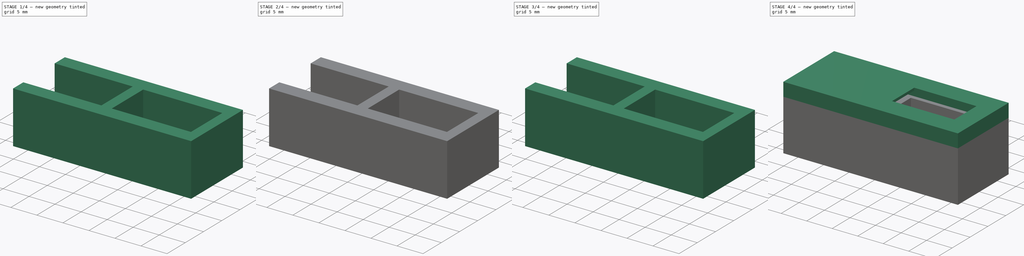
[diagram: build sequence overview — one tinted view per stage of 4, left to right]
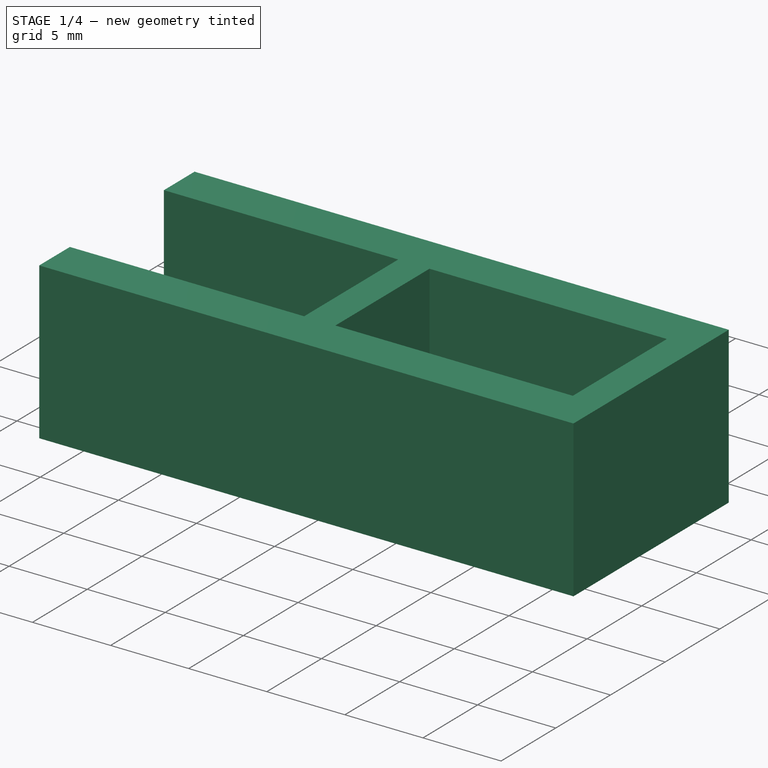
[diagram: stage 1 of 4 — iso view after this stage's code; geometry added in this stage tinted green]
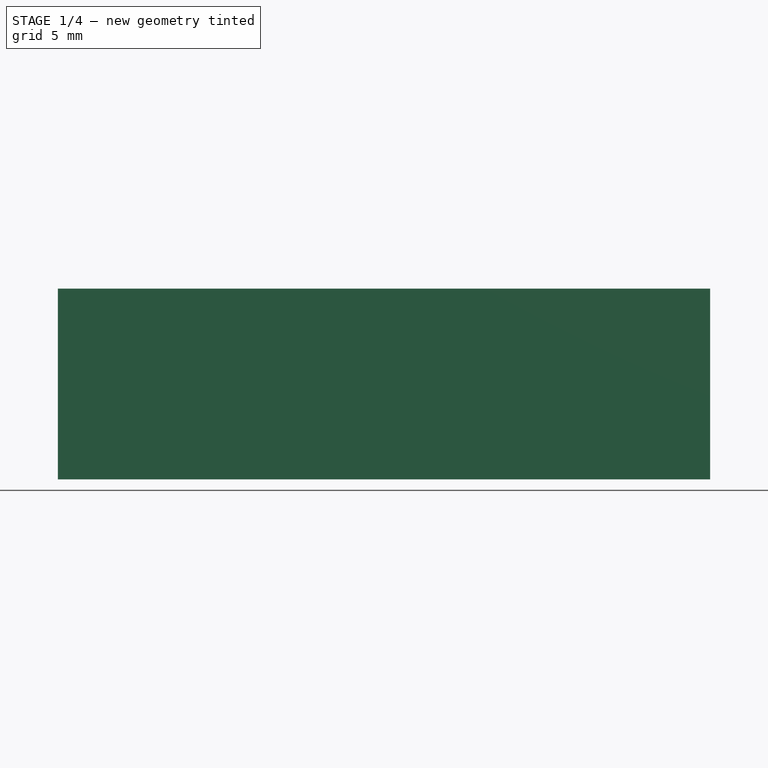
[diagram: stage 1 of 4 — front view after this stage's code; geometry added in this stage tinted green]
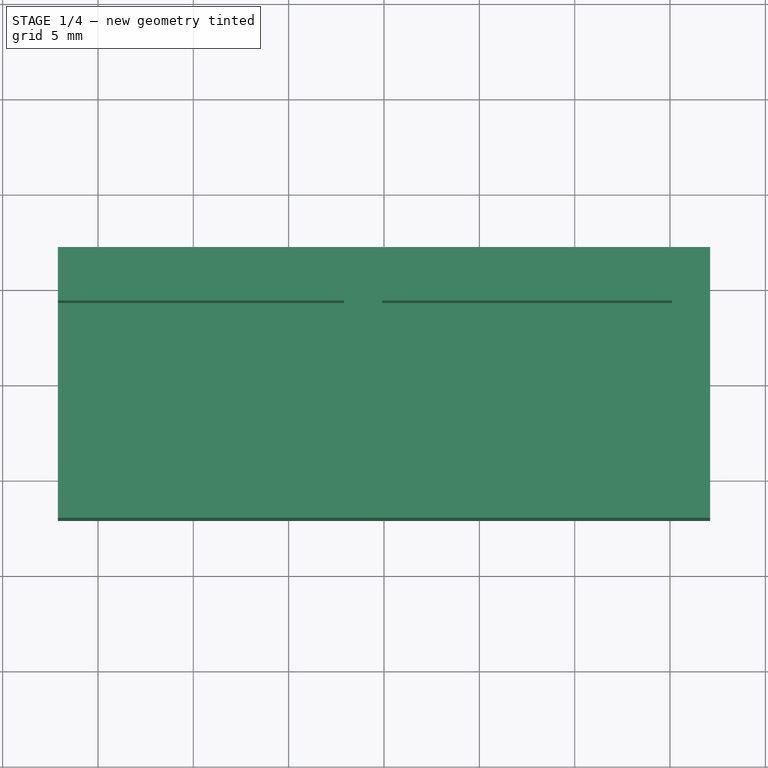
[diagram: stage 1 of 4 — top view after this stage's code; geometry added in this stage tinted green]
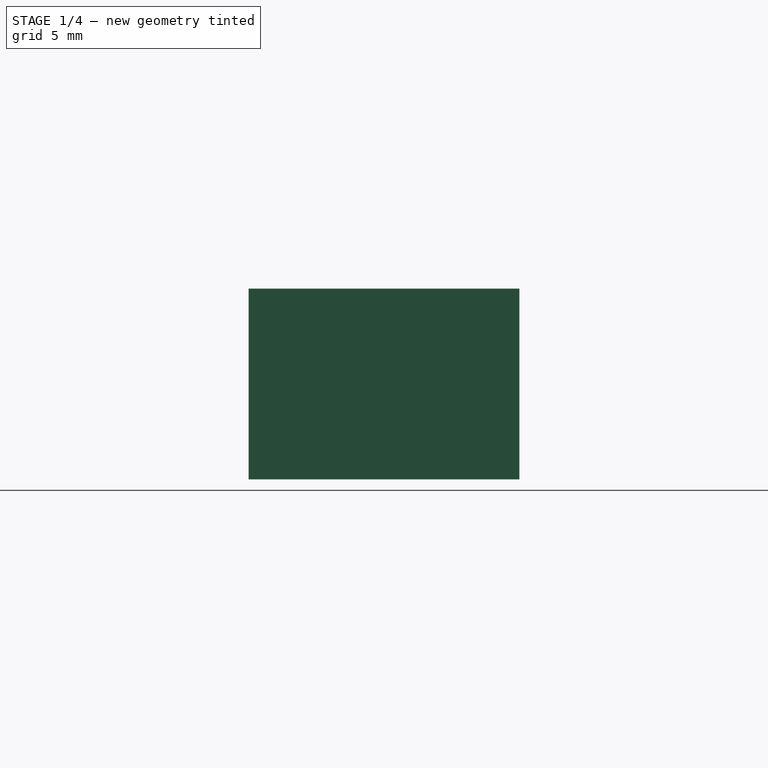
[diagram: stage 1 of 4 — right view after this stage's code; geometry added in this stage tinted green]
FCSTD DOCUMENT  (FreeCAD 0.20R29410 (Git))
Label: Sensor
License: All rights reserved
LicenseURL: http://en.wikipedia.org/wiki/All_rights_reserved
objects: Part::Extrusion×8, Sketcher::SketchObject×6, Part::MultiFuse×4, PartDesign::Body×1, Part::Cut×1
note: 20 computed .brp shape members not serialized (recipe doc carries the construction recipe); baked Part::Feature solids carry a one-line shape summary decoded from their .brp

FEATURE [Sketcher::SketchObject] Sketch  label="bottom_plate_sketch"
  FullyConstrained = true
  MapMode = 5
  Support = -> [XY_Plane]
  sketch-geometry (4):
    g0: LineSegment StartX=-17.1 StartY=7.1 StartZ=0 EndX=17.1 EndY=7.1 EndZ=0
    g1: LineSegment StartX=17.1 StartY=7.1 StartZ=0 EndX=17.1 EndY=-7.1 EndZ=0
    g2: LineSegment StartX=17.1 StartY=-7.1 StartZ=0 EndX=-17.1 EndY=-7.1 EndZ=0
    g3: LineSegment StartX=-17.1 StartY=-7.1 StartZ=0 EndX=-17.1 EndY=7.1 EndZ=0
  constraints (12):
    c: Coincident(g0,g1)
    c: Coincident(g1,g2)
    c: Coincident(g2,g3)
    c: Coincident(g3,g0)
    c: Horizontal(g0)
    c: Horizontal(g2)
    c: Vertical(g1)
    c: Vertical(g3)
    c: Distance(g1) = 14.2
    c: DistanceY(g-1,g0) = 7.1
    c: Distance(g0) = 34.2
    c: DistanceX(g-2,g0) = -17.1
FEATURE [Sketcher::SketchObject] Sketch001  label="bottom_around_bottom_sketch"
  FullyConstrained = true
  MapMode = 5
  Support = -> [XY_Plane]
  sketch-geometry (12):
    g0: LineSegment StartX=-17.1 StartY=7.1 StartZ=0 EndX=17.1 EndY=7.1 EndZ=0
    g1: LineSegment StartX=17.1 StartY=7.1 StartZ=0 EndX=17.1 EndY=-7.1 EndZ=0
    g2: LineSegment StartX=17.1 StartY=-7.1 StartZ=0 EndX=-17.1 EndY=-7.1 EndZ=0
    g3: LineSegment StartX=-17.1 StartY=-7.1 StartZ=0 EndX=-17.1 EndY=-4.3 EndZ=0
    g4: LineSegment StartX=-17.1 StartY=4.3 StartZ=0 EndX=-17.1 EndY=7.1 EndZ=0
    g5: LineSegment StartX=15.1 StartY=-4.3 StartZ=0 EndX=15.1 EndY=4.3 EndZ=0
    g6: LineSegment StartX=-17.1 StartY=4.3 StartZ=0 EndX=-2.1 EndY=4.3 EndZ=0
    g7: LineSegment StartX=-0.1 StartY=4.3 StartZ=0 EndX=15.1 EndY=4.3 EndZ=0
    g8: LineSegment StartX=-17.1 StartY=-4.3 StartZ=0 EndX=-2.1 EndY=-4.3 EndZ=0
    g9: LineSegment StartX=-0.1 StartY=-4.3 StartZ=0 EndX=15.1 EndY=-4.3 EndZ=0
    g10: LineSegment StartX=-2.1 StartY=4.3 StartZ=0 EndX=-2.1 EndY=-4.3 EndZ=0
    g11: LineSegment StartX=-0.1 StartY=-4.3 StartZ=0 EndX=-0.1 EndY=4.3 EndZ=0
  constraints (36):
    c: Coincident(g0,g1)
    c: Coincident(g1,g2)
    c: Coincident(g2,g3)
    c: Coincident(g4,g0)
    c: Horizontal(g0)
    c: Horizontal(g2)
    c: Vertical(g1)
    c: Distance(g1) = 14.2
    c: DistanceY(g-1,g0) = 7.1
    c: Distance(g0) = 34.2
    c: DistanceX(g-2,g0) = -17.1
    c: Vertical(g3)
    c: Vertical(g4)
    c: Distance(g4) = 2.8
    c: Distance(g3) = 2.8
    c: Vertical(g2,g4)
    c: Coincident(g6,g4)
    c: Coincident(g8,g3)
    c: Vertical(g7,g9)
    c: Distance(g9,g1) = 2
    c: Coincident(g5,g9)
    c: Coincident(g5,g7)
    c: Horizontal(g6)
    c: Horizontal(g7)
    c: Horizontal(g8)
    c: Horizontal(g9)
    c: Vertical(g8,g6)
    c: Horizontal(g6,g7)
    c: Horizontal(g8,g9)
    c: Vertical(g7,g9)
    c: Coincident(g10,g6)
    c: Coincident(g10,g8)
    c: Coincident(g11,g9)
    c: Coincident(g11,g7)
    c: Distance(g6) = 15
    c: Distance(g7,g6) = 2
FEATURE [Part::Extrusion] Extrude  label="bottom_plate"
  Base = -> Sketch
  Dir = (0,0,1)
  DirMode = 2
  FaceMakerClass = Part::FaceMakerBullseye
  LengthFwd = 2
  LengthRev = 0
  Solid = true
  Symmetric = false
FEATURE [Part::Extrusion] Extrude001  label="bottom_around_bottom"
  Base = -> Sketch001
  Dir = (0,0,1)
  DirMode = 2
  FaceMakerClass = Part::FaceMakerBullseye
  LengthFwd = 10
  LengthRev = -2
  Solid = true
  Symmetric = false
FEATURE [Part::MultiFuse] Fusion003  label="bottom_half"
  Shapes = -> [Extrude,Extrude001]
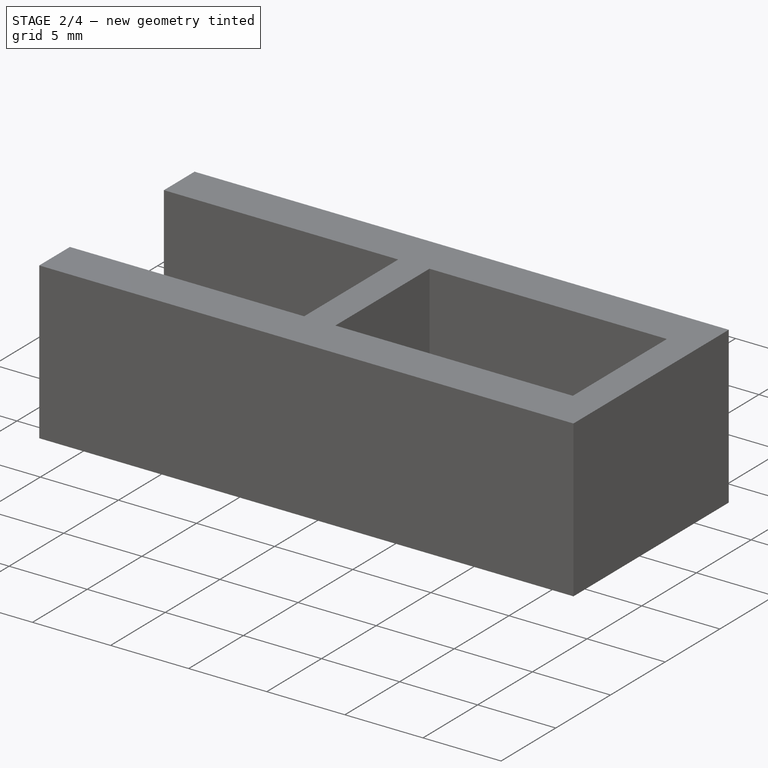
[diagram: stage 2 of 4 — iso view after this stage's code; geometry added in this stage tinted green]
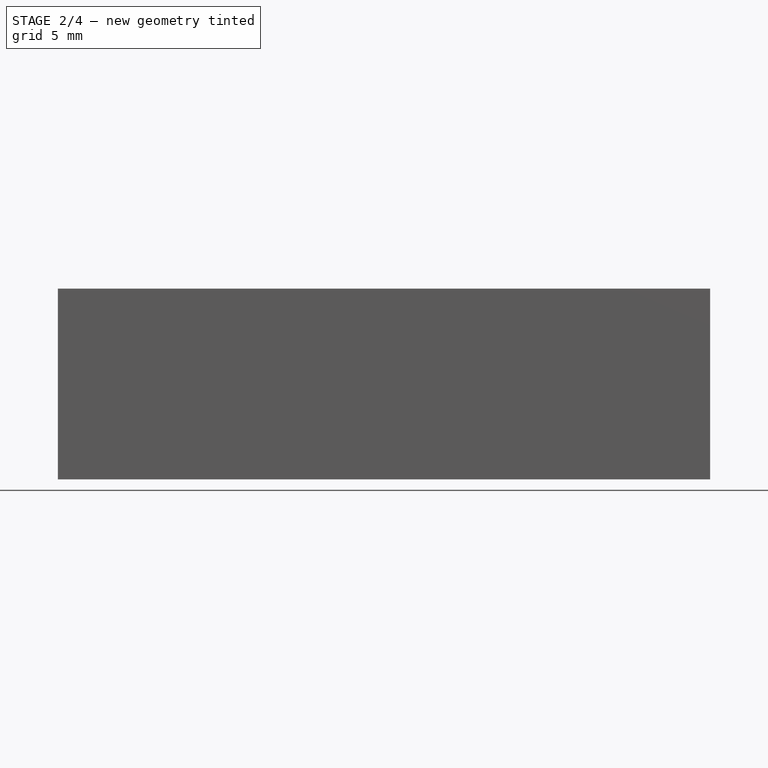
[diagram: stage 2 of 4 — front view after this stage's code; geometry added in this stage tinted green]
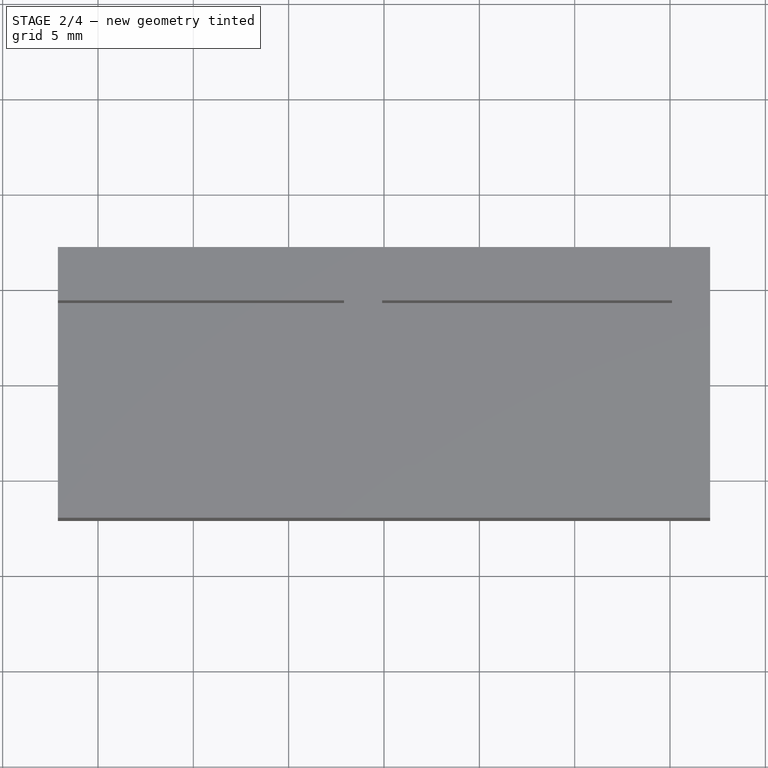
[diagram: stage 2 of 4 — top view after this stage's code; geometry added in this stage tinted green]
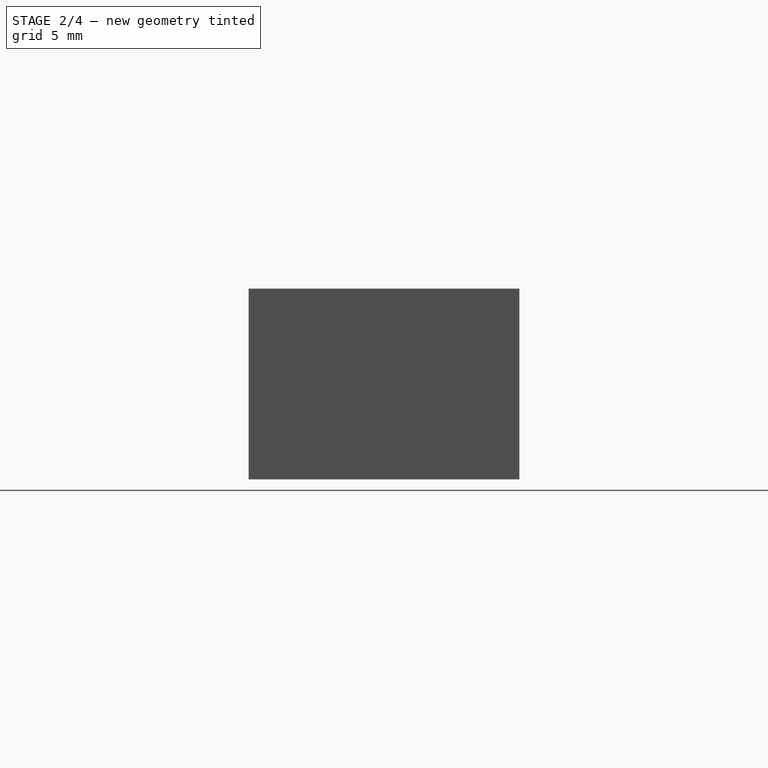
[diagram: stage 2 of 4 — right view after this stage's code; geometry added in this stage tinted green]
FEATURE [Sketcher::SketchObject] Sketch005  label="hook_sketch001"
  FullyConstrained = true
  MapMode = 5
  Placement = pos=(0,0,0) rot=(0.57735,0.57735,0.57735;2.0944rad)
  sketch-geometry (12):
    g0: LineSegment StartX=-7.1 StartY=10 StartZ=0 EndX=-6.6 EndY=10 EndZ=0
    g1: LineSegment StartX=-7.1 StartY=7 StartZ=0 EndX=-7.1 EndY=8.5 EndZ=0
    g2: LineSegment StartX=-7.1 StartY=8.5 StartZ=0 EndX=-7.1 EndY=10 EndZ=0
    g3: LineSegment StartX=-6.6 StartY=10 StartZ=0 EndX=-6.6 EndY=8.5 EndZ=0
    g4: LineSegment StartX=-6.6 StartY=8.5 StartZ=0 EndX=-5.6 EndY=8.5 EndZ=0
    g5: LineSegment StartX=-5.6 StartY=8.5 StartZ=0 EndX=-7.1 EndY=7 EndZ=0
    g6: LineSegment StartX=6.6 StartY=10 StartZ=0 EndX=7.1 EndY=10 EndZ=0
    g7: LineSegment StartX=6.6 StartY=8.5 StartZ=0 EndX=6.6 EndY=10 EndZ=0
    g8: LineSegment StartX=7.1 StartY=10 StartZ=0 EndX=7.1 EndY=8.5 EndZ=0
    g9: LineSegment StartX=7.1 StartY=8.5 StartZ=0 EndX=7.1 EndY=7 EndZ=0
    g10: LineSegment StartX=6.6 StartY=8.5 StartZ=0 EndX=5.6 EndY=8.5 EndZ=0
    g11: LineSegment StartX=5.6 StartY=8.5 StartZ=0 EndX=7.1 EndY=7 EndZ=0
  constraints (36):
    c: Coincident(g0,g3)
    c: Coincident(g2,g0)
    c: Horizontal(g0)
    c: DistanceY(g-1,g0) = 10
    c: DistanceX(g-2,g0) = -7.1
    c: Distance(g0) = 0.5
    c: Coincident(g1,g2)
    c: Vertical(g1)
    c: Vertical(g2)
    c: Distance(g1,g2) = 3
    c: Vertical(g3)
    c: Horizontal(g3,g1)
    c: Distance(g1,g1) = 1.5
    c: Coincident(g4,g3)
    c: Horizontal(g4)
    c: Coincident(g5,g4)
    c: Coincident(g5,g1)
    c: Distance(g4) = 1
    c: Coincident(g6,g8)
    c: Coincident(g7,g6)
    c: Horizontal(g6)
    c: DistanceX(g-2,g6) = 7.1
    c: DistanceY(g-1,g6) = 10
    c: Distance(g6) = 0.5
    c: Vertical(g7)
    c: Coincident(g8,g9)
    c: Vertical(g8)
    c: Vertical(g9)
    c: Distance(g8,g9) = 3
    c: Horizontal(g7,g8)
    c: Distance(g9) = 1.5
    c: Coincident(g10,g7)
    c: Horizontal(g10)
    c: Distance(g10) = 1
    c: Coincident(g11,g10)
    c: Coincident(g11,g9)
FEATURE [Part::Extrusion] Extrude007  label="hook003"
  Base = -> Sketch005
  Dir = (1,-1e-16,1e-16)
  DirMode = 2
  FaceMakerClass = Part::FaceMakerBullseye
  LengthFwd = 11
  LengthRev = -6
  Solid = true
  Symmetric = false
FEATURE [Part::Extrusion] Extrude008  label="hook004"
  Base = -> Sketch005
  Dir = (1,-1e-16,1e-16)
  DirMode = 2
  FaceMakerClass = Part::FaceMakerBullseye
  LengthFwd = -6
  LengthRev = 11
  Solid = true
  Symmetric = false
FEATURE [Part::MultiFuse] Fusion001  label="hook_r"
  Shapes = -> [Extrude007,Extrude008]
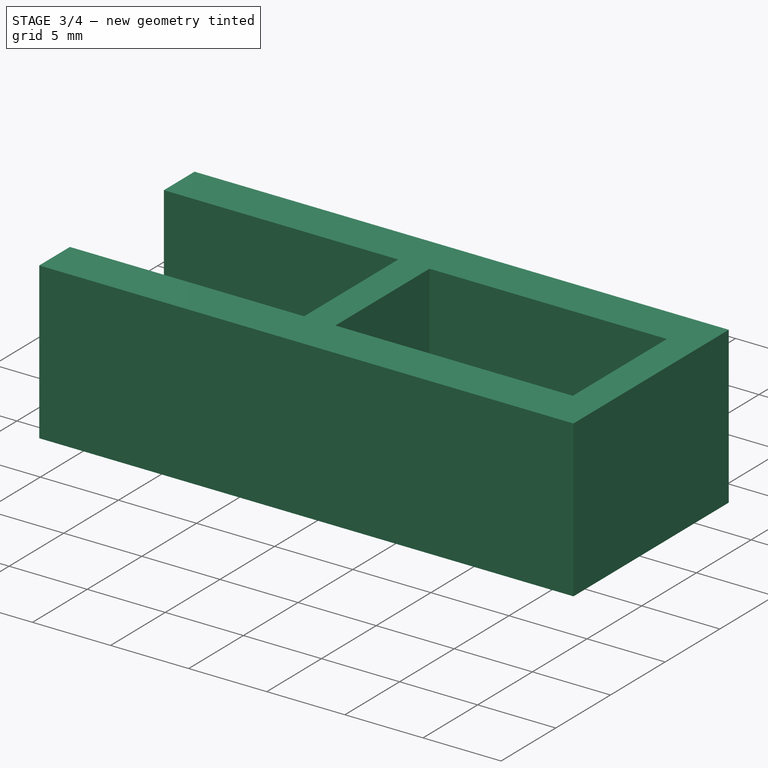
[diagram: stage 3 of 4 — iso view after this stage's code; geometry added in this stage tinted green]
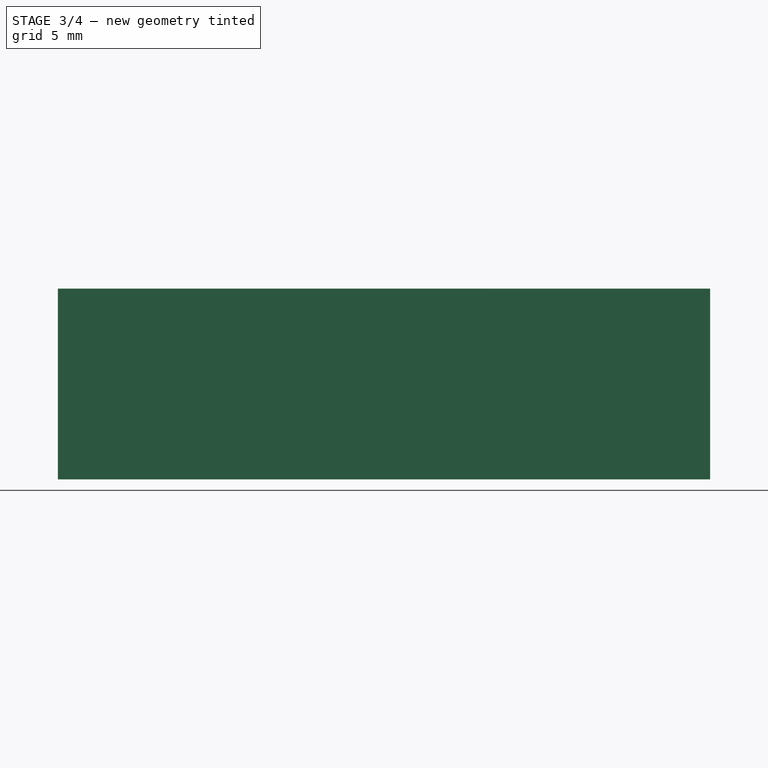
[diagram: stage 3 of 4 — front view after this stage's code; geometry added in this stage tinted green]
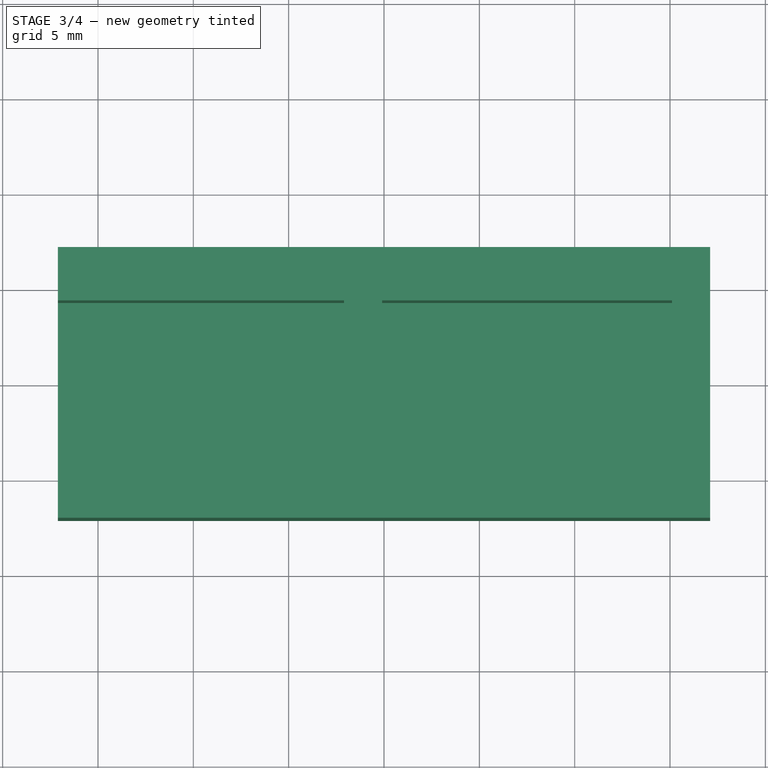
[diagram: stage 3 of 4 — top view after this stage's code; geometry added in this stage tinted green]
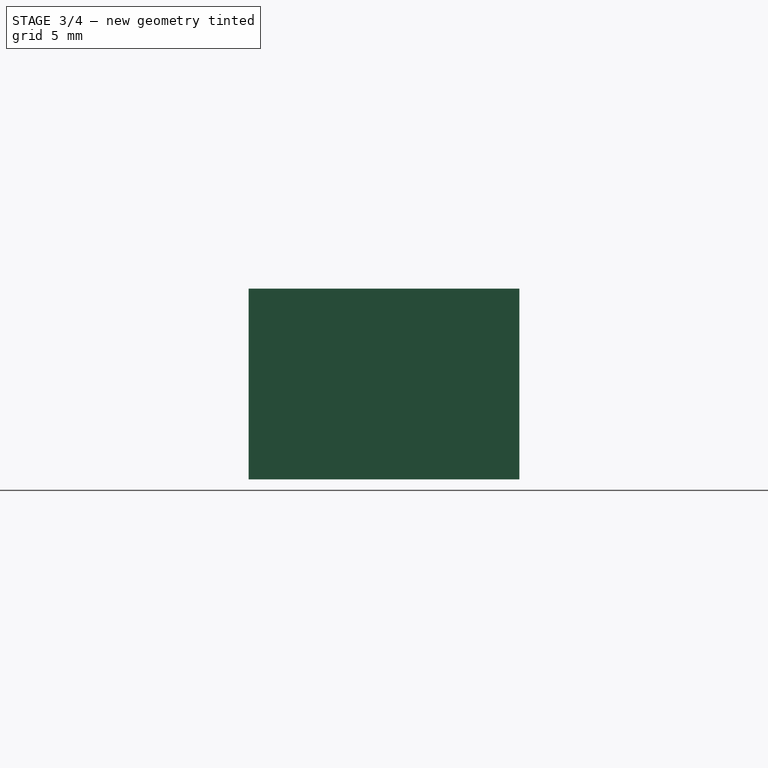
[diagram: stage 3 of 4 — right view after this stage's code; geometry added in this stage tinted green]
FEATURE [Sketcher::SketchObject] Sketch004  label="hook_sketch"
  FullyConstrained = true
  MapMode = 5
  Placement = pos=(0,0,0) rot=(0.57735,0.57735,0.57735;2.0944rad)
  Support = -> [YZ_Plane]
  sketch-geometry (12):
    g0: LineSegment StartX=-7.1 StartY=10 StartZ=0 EndX=-6.6 EndY=10 EndZ=0
    g1: LineSegment StartX=-7.1 StartY=7 StartZ=0 EndX=-7.1 EndY=8.5 EndZ=0
    g2: LineSegment StartX=-7.1 StartY=8.5 StartZ=0 EndX=-7.1 EndY=10 EndZ=0
    g3: LineSegment StartX=-6.6 StartY=10 StartZ=0 EndX=-6.6 EndY=8.5 EndZ=0
    g4: LineSegment StartX=-6.6 StartY=8.5 StartZ=0 EndX=-5.6 EndY=8.5 EndZ=0
    g5: LineSegment StartX=-5.6 StartY=8.5 StartZ=0 EndX=-7.1 EndY=7 EndZ=0
    g6: LineSegment StartX=6.6 StartY=10 StartZ=0 EndX=7.1 EndY=10 EndZ=0
    g7: LineSegment StartX=6.6 StartY=8.5 StartZ=0 EndX=6.6 EndY=10 EndZ=0
    g8: LineSegment StartX=7.1 StartY=10 StartZ=0 EndX=7.1 EndY=8.5 EndZ=0
    g9: LineSegment StartX=7.1 StartY=8.5 StartZ=0 EndX=7.1 EndY=7 EndZ=0
    g10: LineSegment StartX=6.6 StartY=8.5 StartZ=0 EndX=5.6 EndY=8.5 EndZ=0
    g11: LineSegment StartX=5.6 StartY=8.5 StartZ=0 EndX=7.1 EndY=7 EndZ=0
  constraints (36):
    c: Coincident(g0,g3)
    c: Coincident(g2,g0)
    c: Horizontal(g0)
    c: DistanceY(g-1,g0) = 10
    c: DistanceX(g-2,g0) = -7.1
    c: Distance(g0) = 0.5
    c: Coincident(g1,g2)
    c: Vertical(g1)
    c: Vertical(g2)
    c: Distance(g1,g2) = 3
    c: Vertical(g3)
    c: Horizontal(g3,g1)
    c: Distance(g1,g1) = 1.5
    c: Coincident(g4,g3)
    c: Horizontal(g4)
    c: Coincident(g5,g4)
    c: Coincident(g5,g1)
    c: Distance(g4) = 1
    c: Coincident(g6,g8)
    c: Coincident(g7,g6)
    c: Horizontal(g6)
    c: DistanceX(g-2,g6) = 7.1
    c: DistanceY(g-1,g6) = 10
    c: Distance(g6) = 0.5
    c: Vertical(g7)
    c: Coincident(g8,g9)
    c: Vertical(g8)
    c: Vertical(g9)
    c: Distance(g8,g9) = 3
    c: Horizontal(g7,g8)
    c: Distance(g9) = 1.5
    c: Coincident(g10,g7)
    c: Horizontal(g10)
    c: Distance(g10) = 1
    c: Coincident(g11,g10)
    c: Coincident(g11,g9)
FEATURE [PartDesign::Body] Body  label="sketch"
  Group = -> [Sketch,Sketch001,Sketch002,Sketch003,Sketch004]
  Origin = -> Origin
FEATURE [Part::Extrusion] Extrude005  label="hook1"
  Base = -> Sketch004
  Dir = (1,-1e-16,1e-16)
  DirMode = 2
  FaceMakerClass = Part::FaceMakerBullseye
  LengthFwd = 11
  LengthRev = -6
  Solid = true
  Symmetric = false
FEATURE [Part::Extrusion] Extrude006  label="hook2"
  Base = -> Sketch004
  Dir = (1,-1e-16,1e-16)
  DirMode = 2
  FaceMakerClass = Part::FaceMakerBullseye
  LengthFwd = -6
  LengthRev = 11
  Solid = true
  Symmetric = false
FEATURE [Part::MultiFuse] Fusion  label="hook"
  Shapes = -> [Extrude005,Extrude006]
FEATURE [Part::Cut] Cut  label="bottom_part"
  Base = -> Fusion003
  Tool = -> Fusion001
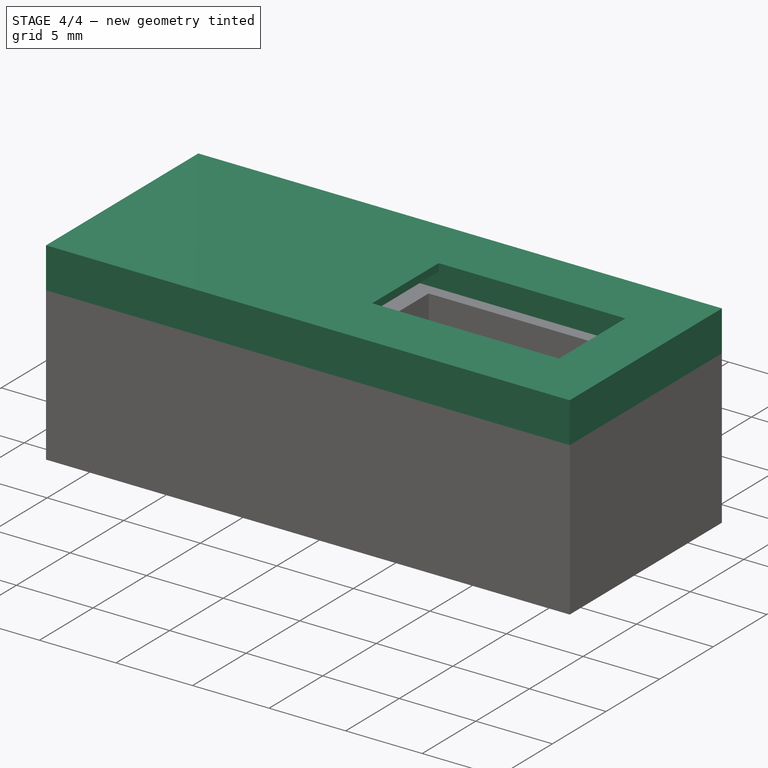
[diagram: stage 4 of 4 — iso view after this stage's code; geometry added in this stage tinted green]
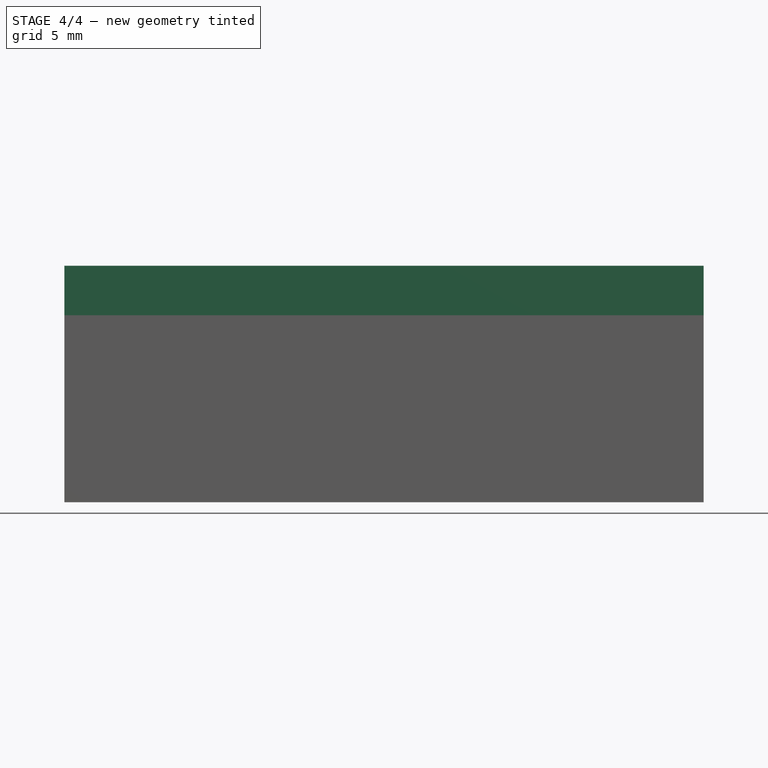
[diagram: stage 4 of 4 — front view after this stage's code; geometry added in this stage tinted green]
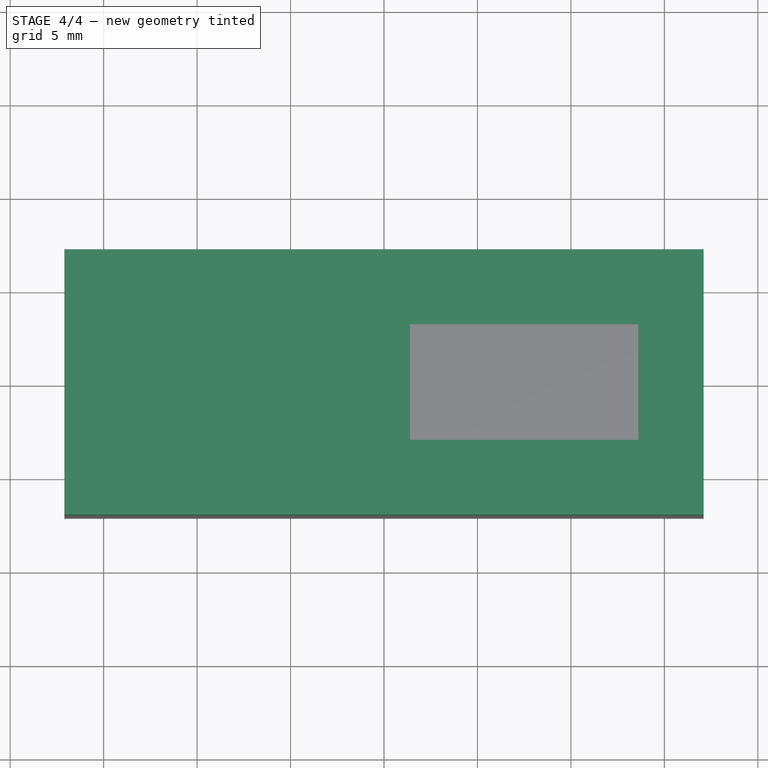
[diagram: stage 4 of 4 — top view after this stage's code; geometry added in this stage tinted green]
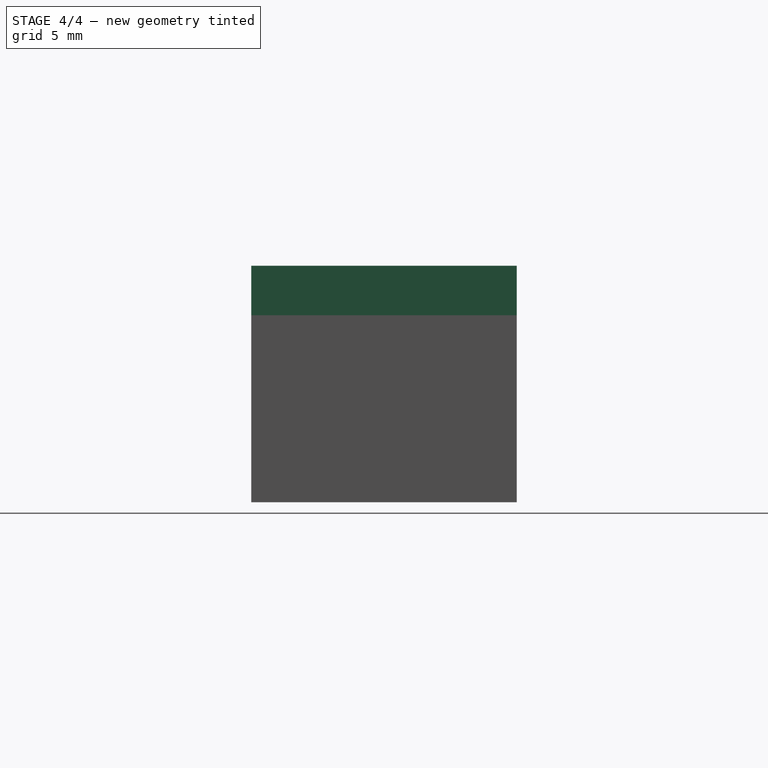
[diagram: stage 4 of 4 — right view after this stage's code; geometry added in this stage tinted green]
FEATURE [Sketcher::SketchObject] Sketch002  label="top_around_sketch"
  FullyConstrained = true
  MapMode = 5
  Support = -> [XY_Plane]
  sketch-geometry (9):
    g0: LineSegment StartX=-17.1 StartY=7.1 StartZ=0 EndX=17.1 EndY=7.1 EndZ=0
    g1: LineSegment StartX=17.1 StartY=7.1 StartZ=0 EndX=17.1 EndY=-7.1 EndZ=0
    g2: LineSegment StartX=17.1 StartY=-7.1 StartZ=0 EndX=-17.1 EndY=-7.1 EndZ=0
    g3: LineSegment StartX=-17.1 StartY=-7.1 StartZ=0 EndX=-17.1 EndY=7.1 EndZ=0
    g4: LineSegment StartX=-15.1 StartY=-5.1 StartZ=0 EndX=-15.1 EndY=5.1 EndZ=0
    g5: LineSegment StartX=-15.1 StartY=5.1 StartZ=0 EndX=15.1 EndY=5.1 EndZ=0
    g6: LineSegment StartX=15.1 StartY=5.1 StartZ=0 EndX=15.1 EndY=-5.1 EndZ=0
    g7: LineSegment StartX=15.1 StartY=-5.1 StartZ=0 EndX=-15.1 EndY=-5.1 EndZ=0
    g8: GeomPoint X=0 Y=0 Z=0
  constraints (24):
    c: Coincident(g0,g1)
    c: Coincident(g1,g2)
    c: Coincident(g2,g3)
    c: Coincident(g3,g0)
    c: Horizontal(g0)
    c: Horizontal(g2)
    c: Vertical(g1)
    c: Vertical(g3)
    c: Distance(g1) = 14.2
    c: DistanceY(g-1,g0) = 7.1
    c: Distance(g0) = 34.2
    c: DistanceX(g-2,g0) = -17.1
    c: Coincident(g4,g5)
    c: Coincident(g5,g6)
    c: Coincident(g6,g7)
    c: Coincident(g7,g4)
    c: Horizontal(g5)
    c: Horizontal(g7)
    c: Vertical(g4)
    c: Vertical(g6)
    c: Symmetric(g5,g4,g8)
    c: Coincident(g8,g-1)
    c: Distance(g4,g0) = 2
    c: Distance(g4,g3) = 2
FEATURE [Part::Extrusion] Extrude003  label="top_around"
  Base = -> Sketch002
  Dir = (0,0,1)
  DirMode = 2
  FaceMakerClass = Part::FaceMakerBullseye
  LengthFwd = 12.65
  LengthRev = -10
  Solid = true
  Symmetric = false
FEATURE [Sketcher::SketchObject] Sketch003  label="top_lid_sketch"
  FullyConstrained = true
  MapMode = 5
  Support = -> [XY_Plane]
  sketch-geometry (9):
    g0: LineSegment StartX=-17.1 StartY=7.1 StartZ=0 EndX=17.1 EndY=7.1 EndZ=0
    g1: LineSegment StartX=17.1 StartY=7.1 StartZ=0 EndX=17.1 EndY=-7.1 EndZ=0
    g2: LineSegment StartX=17.1 StartY=-7.1 StartZ=0 EndX=-17.1 EndY=-7.1 EndZ=0
    g3: LineSegment StartX=-17.1 StartY=-7.1 StartZ=0 EndX=-17.1 EndY=7.1 EndZ=0
    g4: LineSegment StartX=1.4 StartY=-3.1 StartZ=0 EndX=1.4 EndY=3.1 EndZ=0
    g5: LineSegment StartX=1.4 StartY=3.1 StartZ=0 EndX=13.6 EndY=3.1 EndZ=0
    g6: LineSegment StartX=13.6 StartY=3.1 StartZ=0 EndX=13.6 EndY=-3.1 EndZ=0
    g7: LineSegment StartX=13.6 StartY=-3.1 StartZ=0 EndX=1.4 EndY=-3.1 EndZ=0
    g8: GeomPoint X=7.5 Y=0 Z=0
  constraints (25):
    c: Coincident(g0,g1)
    c: Coincident(g1,g2)
    c: Coincident(g2,g3)
    c: Coincident(g3,g0)
    c: Horizontal(g0)
    c: Horizontal(g2)
    c: Vertical(g1)
    c: Vertical(g3)
    c: Distance(g1) = 14.2
    c: DistanceY(g-1,g0) = 7.1
    c: Distance(g0) = 34.2
    c: DistanceX(g-2,g0) = -17.1
    c: Coincident(g4,g5)
    c: Coincident(g5,g6)
    c: Coincident(g6,g7)
    c: Coincident(g7,g4)
    c: Horizontal(g5)
    c: Horizontal(g7)
    c: Vertical(g4)
    c: Vertical(g6)
    c: Symmetric(g5,g4,g8)
    c: PointOnObject(g8,g-1)
    c: Distance(g6) = 6.2
    c: Distance(g5) = 12.2
    c: Distance(g-1,g8) = 7.5
FEATURE [Part::Extrusion] Extrude004  label="top_lid"
  Base = -> Sketch003
  Dir = (0,0,1)
  DirMode = 2
  FaceMakerClass = Part::FaceMakerBullseye
  LengthFwd = 12.15
  LengthRev = -12.65
  Solid = true
  Symmetric = false
FEATURE [Part::MultiFuse] Fusion002  label="top_part"
  Shapes = -> [Extrude004,Extrude003,Fusion]
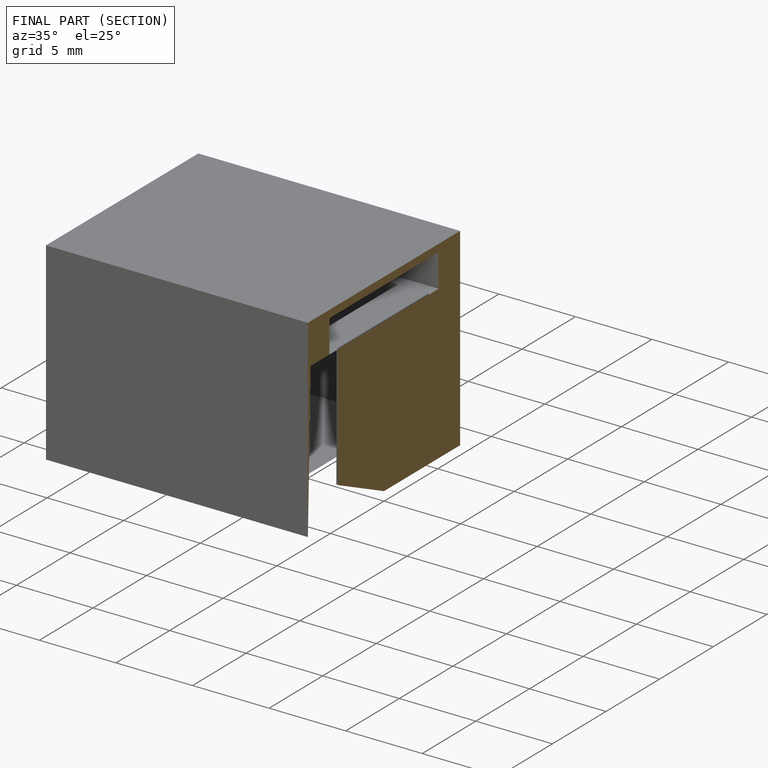
[diagram: finished part — half-section view (interior)]
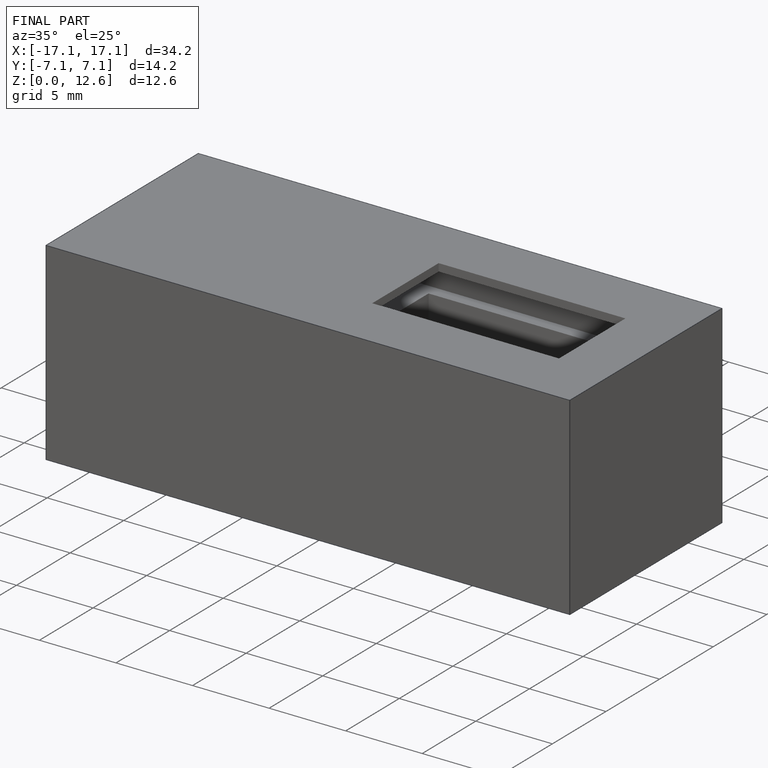
[diagram: finished part — iso view with bounding-box wireframe]
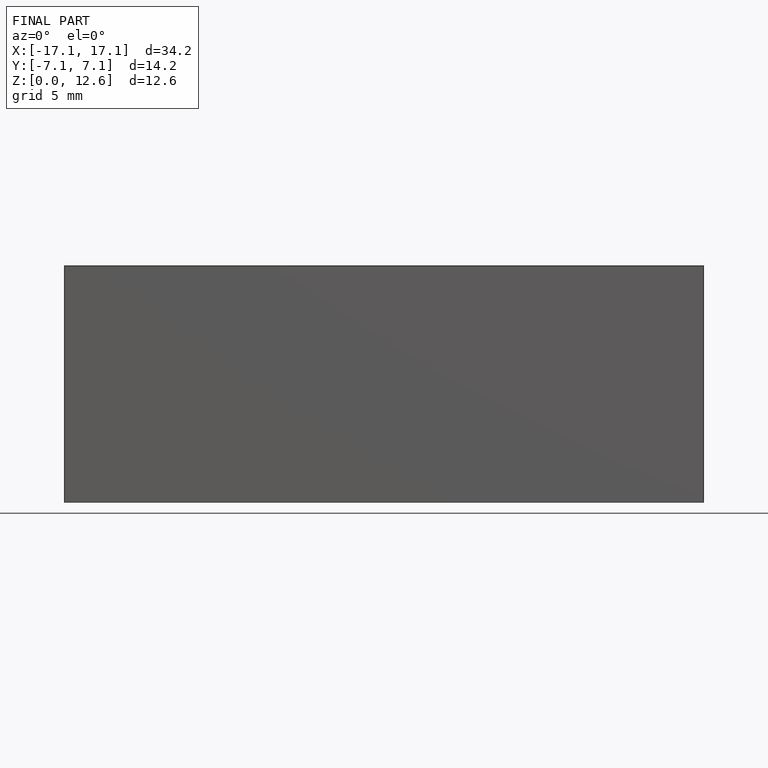
[diagram: finished part — front view with bounding-box wireframe]
